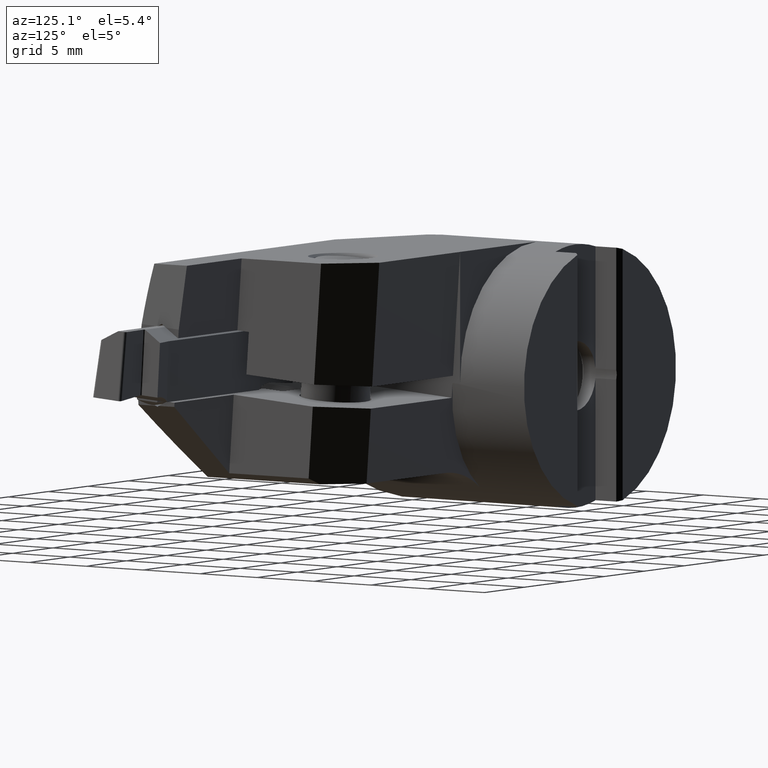
[diagram: clean part render]
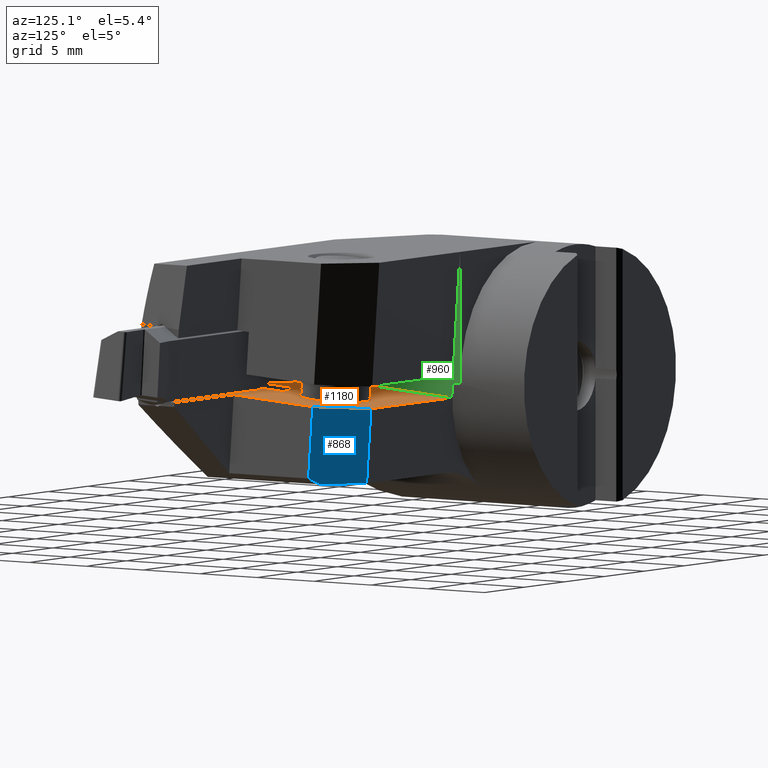
[diagram: same view with three faces highlighted in distinct colors, each labeled with its STEP entity id]
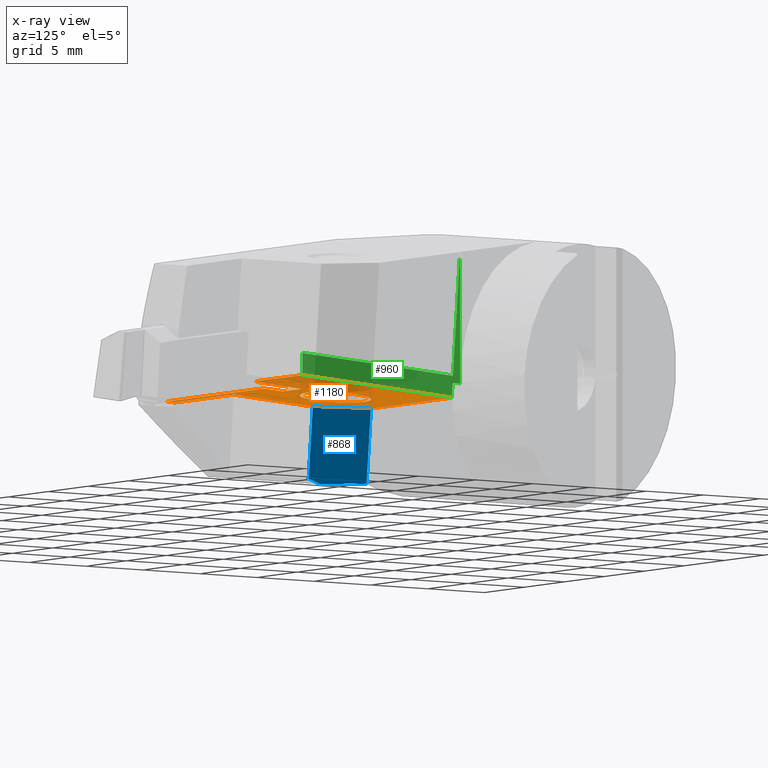
[diagram: x-ray of the same camera — body ghosted, the three highlighted faces saturated]
A machine part, auxiliary view with three faces highlighted in distinct colors.
The next image is the same camera in x-ray (body ghosted, the three faces saturated) — at least one of them is partly hidden behind the body in this view.
Their STEP definitions:

[orange] entity #1180 — the highlighted planar face has unit normal (0, 0.0698, 0.9976).
#942=EDGE_CURVE('NONE',#1408,#1118,#2431,.F.);
#1014=EDGE_CURVE('NONE',#2000,#1630,#2511,.T.);
#1056=EDGE_CURVE('Kante30',#2000,#1798,#2560,.F.);
#1064=EDGE_CURVE('Kante71',#1630,#1118,#2568,.T.);
#1086=EDGE_CURVE('NONE',#1430,#1160,#2594,.F.);
#1104=EDGE_CURVE('NONE',#1868,#1278,#2612,.T.);
#1118=VERTEX_POINT('NONE',#2626);
#1160=VERTEX_POINT('NONE',#2672);
#1180=ADVANCED_FACE('NONE',(#2695,#2696),#2697,.T.);
#1192=VERTEX_POINT('NONE',#2710);
#1258=VERTEX_POINT('NONE',#2780);
#1278=VERTEX_POINT('NONE',#2801);
#1324=EDGE_CURVE('NONE',#1192,#1868,#2850,.F.);
#1334=EDGE_CURVE('NONE',#1798,#2024,#2863,.F.);
#1408=VERTEX_POINT('NONE',#2944);
#1430=VERTEX_POINT('NONE',#2968);
#1510=EDGE_CURVE('NONE',#1258,#2024,#3059,.F.);
#1604=VERTEX_POINT('NONE',#3156);
#1630=VERTEX_POINT('NONE',#3184);
#1798=VERTEX_POINT('NONE',#3366);
#1868=VERTEX_POINT('NONE',#3443);
#1902=EDGE_CURVE('NONE',#1258,#1192,#3483,.T.);
#1932=EDGE_CURVE('NONE',#1278,#1604,#3515,.T.);
#2000=VERTEX_POINT('NONE',#3589);
#2024=VERTEX_POINT('NONE',#3616);
#2074=EDGE_CURVE('NONE',#1160,#1430,#3671,.T.);
#2106=EDGE_CURVE('Kante38',#1604,#1408,#3707,.F.);
#2431=LINE('',#4213,#4214);
#2511=LINE('',#4363,#4364);
#2560=LINE('',#4435,#4436);
#2568=LINE('',#4451,#4452);
#2594=CIRCLE('',#4487,2.6);
#2612=LINE('',#4508,#4509);
#2626=CARTESIAN_POINT('',(30.0,-16.2860096891367,-0.374858529260117));
#2672=CARTESIAN_POINT('',(17.0,-13.8890019756778,-0.542473636866299));
#2695=FACE_OUTER_BOUND('',#4635,.T.);
#2696=FACE_BOUND('',#4636,.T.);
#2697=PLANE('',#4637);
#2710=CARTESIAN_POINT('',(15.5087850094,-19.4697396159966,-0.152230445385687));
#2780=CARTESIAN_POINT('',(9.5,-19.4697396159966,-0.152230445385657));
#2801=CARTESIAN_POINT('',(17.9219986506,-15.2855916460415,-0.444814573624524));
#2850=LINE('',#4914,#4915);
#2863=LINE('',#4931,#4932);
#2944=CARTESIAN_POINT('',(30.0,-16.9455128837718,-0.328741573392722));
#2968=CARTESIAN_POINT('',(17.0,-8.70166891432669,-0.905207300335751));
#3059=LINE('',#5320,#5321);
#3156=CARTESIAN_POINT('',(17.9219986506,-16.9455128837718,-0.328741573392731));
#3184=CARTESIAN_POINT('',(22.6,-16.2860096891367,-0.374858529260117));
#3366=CARTESIAN_POINT('',(19.6,-6.35027174854884,-1.06963300775161));
#3443=CARTESIAN_POINT('',(15.5087850094,-15.2855916460415,-0.444814573624527));
#3483=LINE('',#6411,#6412);
#3515=LINE('',#6457,#6458);
#3589=CARTESIAN_POINT('',(22.6,-9.34296389932831,-0.860363586519231));
#3616=CARTESIAN_POINT('',(9.5,-6.35027174854884,-1.06963300775161));
#3671=CIRCLE('',#6774,2.6);
#3707=LINE('',#6841,#6842);
#4213=CARTESIAN_POINT('',(30.0,-20.888206754544,-0.0530415605404047));
#4214=VECTOR('',#7282,1.0);
#4363=CARTESIAN_POINT('',(22.6,-18.5872042591668,-0.213943329316196));
#4364=VECTOR('',#7366,1.0);
#4435=CARTESIAN_POINT('',(22.2184069263175,-8.96230036719451,-0.886982173744504));
#4436=VECTOR('',#7424,1.0);
#4451=CARTESIAN_POINT('',(16.05,-16.2860096891367,-0.374858529260117));
#4452=VECTOR('',#7426,1.0);
#4487=AXIS2_PLACEMENT_3D('',#7472,#7473,#7474);
#4508=CARTESIAN_POINT('',(13.60045,-15.2855916460415,-0.444814573624526));
#4509=VECTOR('',#7481,1.0);
#4635=EDGE_LOOP('',(#7563,#7564,#7565,#7566,#7567,#7568,#7569,#7570,#7571,#7572,#7573));
#4636=EDGE_LOOP('',(#7574,#7575));
#4637=AXIS2_PLACEMENT_3D('',#7576,#7577,#7578);
#4914=CARTESIAN_POINT('',(15.5087850094,-15.2855916460415,-0.444814573624526));
#4915=VECTOR('',#7718,1.0);
#4931=CARTESIAN_POINT('',(8.21410161513775,-6.35027174854884,-1.06963300775161));
#4932=VECTOR('',#7746,1.0);
#5320=CARTESIAN_POINT('',(9.5,-20.8883988291968,-0.0530281293722806));
#5321=VECTOR('',#7994,1.0);
#6411=CARTESIAN_POINT('',(-9.39759768309578,-19.4697396159966,-0.152230445385657));
#6412=VECTOR('',#8355,1.0);
#6457=CARTESIAN_POINT('',(17.9219986506,-15.2855916460415,-0.444814573624526));
#6458=VECTOR('',#8385,1.0);
#6774=AXIS2_PLACEMENT_3D('',#8558,#8559,#8560);
#6841=CARTESIAN_POINT('',(12.85,-16.9455128837718,-0.328741573392722));
#6842=VECTOR('',#8601,1.0);
#7282=DIRECTION('',(0.0,-0.997564050259824,0.0697564737441255));
#7366=DIRECTION('',(0.0,-0.997564050259824,0.0697564737441255));
#7424=DIRECTION('',(0.707106781186549,-0.705384304606638,0.0493252756161324));
#7426=DIRECTION('',(1.0,0.0,0.0));
#7472=CARTESIAN_POINT('',(17.0,-11.2953354450022,-0.723840468600963));
#7473=DIRECTION('',(0.0,-0.0697564737441255,-0.997564050259824));
#7474=DIRECTION('',(0.0,0.997564050259824,-0.0697564737441254));
#7481=DIRECTION('',(1.0,0.0,0.0));
#7563=ORIENTED_EDGE('',*,*,#1510,.F.);
#7564=ORIENTED_EDGE('',*,*,#1902,.T.);
#7565=ORIENTED_EDGE('',*,*,#1324,.T.);
#7566=ORIENTED_EDGE('',*,*,#1104,.T.);
#7567=ORIENTED_EDGE('',*,*,#1932,.T.);
#7568=ORIENTED_EDGE('',*,*,#2106,.T.);
#7569=ORIENTED_EDGE('',*,*,#942,.T.);
#7570=ORIENTED_EDGE('',*,*,#1064,.F.);
#7571=ORIENTED_EDGE('',*,*,#1014,.F.);
#7572=ORIENTED_EDGE('',*,*,#1056,.T.);
#7573=ORIENTED_EDGE('',*,*,#1334,.T.);
#7574=ORIENTED_EDGE('',*,*,#1086,.F.);
#7575=ORIENTED_EDGE('',*,*,#2074,.F.);
#7576=CARTESIAN_POINT('',(9.5,-20.8883988291968,-0.0530281293722806));
#7577=DIRECTION('',(0.0,0.0697564737441255,0.997564050259824));
#7578=DIRECTION('',(0.0,0.997564050259824,-0.0697564737441255));
#7718=DIRECTION('',(0.0,-0.997564050259825,0.0697564737441185));
#7746=DIRECTION('',(1.0,0.0,0.0));
#7994=DIRECTION('',(0.0,-0.997564050259824,0.0697564737441255));
#8355=DIRECTION('',(1.0,0.0,0.0));
#8385=DIRECTION('',(0.0,-0.997564050259825,0.0697564737441185));
#8558=CARTESIAN_POINT('',(17.0,-11.2953354450022,-0.723840468600963));
#8559=DIRECTION('',(0.0,0.0697564737441255,0.997564050259824));
#8560=DIRECTION('',(0.0,0.997564050259824,-0.0697564737441254));
#8601=DIRECTION('',(-1.0,0.0,-0.0));

[blue] entity #868 — the highlighted planar face has unit normal (-0.7071, -0.7054, 0.0493).
#868=ADVANCED_FACE('NONE',(#2347),#2348,.F.);
#1056=EDGE_CURVE('Kante30',#2000,#1798,#2560,.F.);
#1648=VERTEX_POINT('NONE',#3203);
#1716=VERTEX_POINT('NONE',#3276);
#1798=VERTEX_POINT('NONE',#3366);
#1812=VERTEX_POINT('NONE',#3380);
#1940=EDGE_CURVE('NONE',#1798,#1716,#3523,.F.);
#1964=EDGE_CURVE('NONE',#1648,#1812,#3548,.T.);
#1966=EDGE_CURVE('NONE',#1648,#2000,#3550,.T.);
#2000=VERTEX_POINT('NONE',#3589);
#2086=EDGE_CURVE('NONE',#1716,#1812,#3685,.T.);
#2347=FACE_OUTER_BOUND('',#4036,.T.);
#2348=PLANE('',#4037);
#2560=LINE('',#4435,#4436);
#3203=CARTESIAN_POINT('',(22.6,-9.70684281260864,-6.06407448319679));
#3276=CARTESIAN_POINT('',(19.6,-6.73,-6.5));
#3366=CARTESIAN_POINT('',(19.6,-6.35027174854884,-1.06963300775161));
#3380=CARTESIAN_POINT('',(22.0,-9.13586055539481,-6.5));
#3523=LINE('',#6501,#6502);
#3548=LINE('',#6539,#6540);
#3550=LINE('',#6543,#6544);
#3589=CARTESIAN_POINT('',(22.6,-9.34296389932831,-0.860363586519231));
#3685=LINE('',#6811,#6812);
#4036=EDGE_LOOP('',(#7180,#7181,#7182,#7183,#7184));
#4037=AXIS2_PLACEMENT_3D('',#7185,#7186,#7187);
#4435=CARTESIAN_POINT('',(22.2184069263175,-8.96230036719451,-0.886982173744504));
#4436=VECTOR('',#7424,1.0);
#6501=CARTESIAN_POINT('',(19.6,-6.10380913100496,2.45494663049938));
#6502=VECTOR('',#8387,1.0);
#6539=CARTESIAN_POINT('',(26.8653477457966,-13.7659059521034,-2.96511794914381));
#6540=VECTOR('',#8403,1.0);
#6543=CARTESIAN_POINT('',(22.6,-8.4703104127894,11.6191626822311));
#6544=VECTOR('',#8404,1.0);
#6811=CARTESIAN_POINT('',(26.7493959080454,-13.8968540041948,-6.5));
#6812=VECTOR('',#8574,1.0);
#7180=ORIENTED_EDGE('',*,*,#1966,.F.);
#7181=ORIENTED_EDGE('',*,*,#1964,.T.);
#7182=ORIENTED_EDGE('',*,*,#2086,.F.);
#7183=ORIENTED_EDGE('',*,*,#1940,.F.);
#7184=ORIENTED_EDGE('',*,*,#1056,.F.);
#7185=CARTESIAN_POINT('',(22.6,-8.4703104127894,11.6191626822311));
#7186=DIRECTION('',(-0.707106781186546,-0.705384304606642,0.0493252756161274));
#7187=DIRECTION('',(-0.0695873743166579,0.0,-0.997575860441557));
#7424=DIRECTION('',(0.707106781186549,-0.705384304606638,0.0493252756161324));
#8387=DIRECTION('',(-1.96261557335472E-017,0.0697564737441181,0.997564050259825));
#8403=DIRECTION('',(-0.641041813961954,0.610039169840739,-0.465744140073055));
#8404=DIRECTION('',(-0.0,0.0697564737441181,0.997564050259825));
#8574=DIRECTION('',(0.706243967529311,-0.707968543318457,2.65505543947873E-017));

[green] entity #960 — the highlighted planar face has unit normal (1, 0, 0).
#940=VERTEX_POINT('NONE',#2429);
#946=VERTEX_POINT('NONE',#2435);
#960=ADVANCED_FACE('NONE',(#2449),#2450,.T.);
#990=EDGE_CURVE('NONE',#1704,#2024,#2484,.T.);
#1258=VERTEX_POINT('NONE',#2780);
#1376=VERTEX_POINT('NONE',#2908);
#1416=EDGE_CURVE('Kante75',#1376,#940,#2953,.T.);
#1510=EDGE_CURVE('NONE',#1258,#2024,#3059,.F.);
#1704=VERTEX_POINT('NONE',#3264);
#1816=EDGE_CURVE('NONE',#2122,#940,#3384,.T.);
#1836=EDGE_CURVE('NONE',#1376,#946,#3408,.T.);
#2012=EDGE_CURVE('NONE',#2122,#1258,#3603,.T.);
#2024=VERTEX_POINT('NONE',#3616);
#2042=EDGE_CURVE('Kante68',#1704,#946,#3635,.F.);
#2122=VERTEX_POINT('NONE',#3725);
#2429=CARTESIAN_POINT('',(9.5,-6.23866139055825,0.526469472664112));
#2435=CARTESIAN_POINT('',(9.5,-5.61117100890403,0.0));
#2449=FACE_OUTER_BOUND('',#4268,.T.);
#2450=PLANE('',#4269);
#2484=LINE('',#4314,#4315);
#2780=CARTESIAN_POINT('',(9.5,-19.4697396159966,-0.152230445385657));
#2908=CARTESIAN_POINT('',(9.5,-5.61117100890395,9.5));
#2953=LINE('',#5143,#5144);
#3059=LINE('',#5320,#5321);
#3264=CARTESIAN_POINT('',(9.5,-6.27547572236723,5.81688018065629E-016));
#3384=LINE('',#6103,#6104);
#3408=LINE('',#6188,#6189);
#3603=CIRCLE('',#6658,44.5);
#3616=CARTESIAN_POINT('',(9.5,-6.35027174854884,-1.06963300775161));
#3635=LINE('',#6723,#6724);
#3725=CARTESIAN_POINT('',(9.5,-19.4463687502489,1.45004234141012));
#4268=EDGE_LOOP('',(#7289,#7290,#7291,#7292,#7293,#7294,#7295));
#4269=AXIS2_PLACEMENT_3D('',#7296,#7297,#7298);
#4314=CARTESIAN_POINT('',(9.5,-6.54013587427442,-3.78481650387575));
#4315=VECTOR('',#7337,1.0);
#5143=CARTESIAN_POINT('',(9.5,-6.54013587427442,-3.78481650387575));
#5144=VECTOR('',#7868,1.0);
#5320=CARTESIAN_POINT('',(9.5,-20.8883988291968,-0.0530281293722806));
#5321=VECTOR('',#7994,1.0);
#6103=CARTESIAN_POINT('',(9.5,-20.7767884712062,1.54307435104344));
#6104=VECTOR('',#8253,1.0);
#6188=CARTESIAN_POINT('',(9.5,-5.61117100890403,-0.0265140646861403));
#6189=VECTOR('',#8278,1.0);
#6658=AXIS2_PLACEMENT_3D('',#8476,#8477,#8478);
#6723=CARTESIAN_POINT('',(9.5,-20.22,0.0));
#6724=VECTOR('',#8507,1.0);
#7289=ORIENTED_EDGE('',*,*,#1816,.F.);
#7290=ORIENTED_EDGE('',*,*,#2012,.T.);
#7291=ORIENTED_EDGE('',*,*,#1510,.T.);
#7292=ORIENTED_EDGE('',*,*,#990,.F.);
#7293=ORIENTED_EDGE('',*,*,#2042,.T.);
#7294=ORIENTED_EDGE('',*,*,#1836,.F.);
#7295=ORIENTED_EDGE('',*,*,#1416,.T.);
#7296=CARTESIAN_POINT('',(9.5,-20.8883988291968,-0.0530281293722806));
#7297=DIRECTION('',(1.0,0.0,0.0));
#7298=DIRECTION('',(0.0,-1.0,0.0));
#7337=DIRECTION('',(0.0,-0.0697564737441181,-0.997564050259825));
#7868=DIRECTION('',(0.0,-0.0697564737441181,-0.997564050259825));
#7994=DIRECTION('',(0.0,-0.997564050259824,0.0697564737441255));
#8253=DIRECTION('',(0.0,0.997564050259824,-0.0697564737441255));
#8278=DIRECTION('',(0.0,0.0,-1.0));
#8476=CARTESIAN_POINT('',(9.5,25.03,0.0));
#8477=DIRECTION('',(1.0,0.0,0.0));
#8478=DIRECTION('',(0.0,0.0,-1.0));
#8507=DIRECTION('',(0.0,-1.0,0.0));